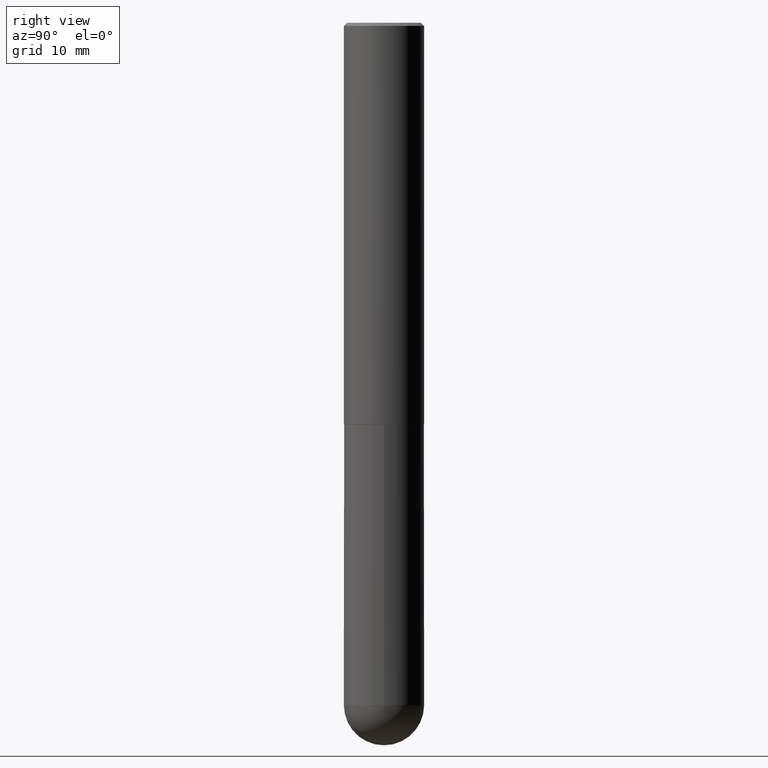
[diagram: clean part render]
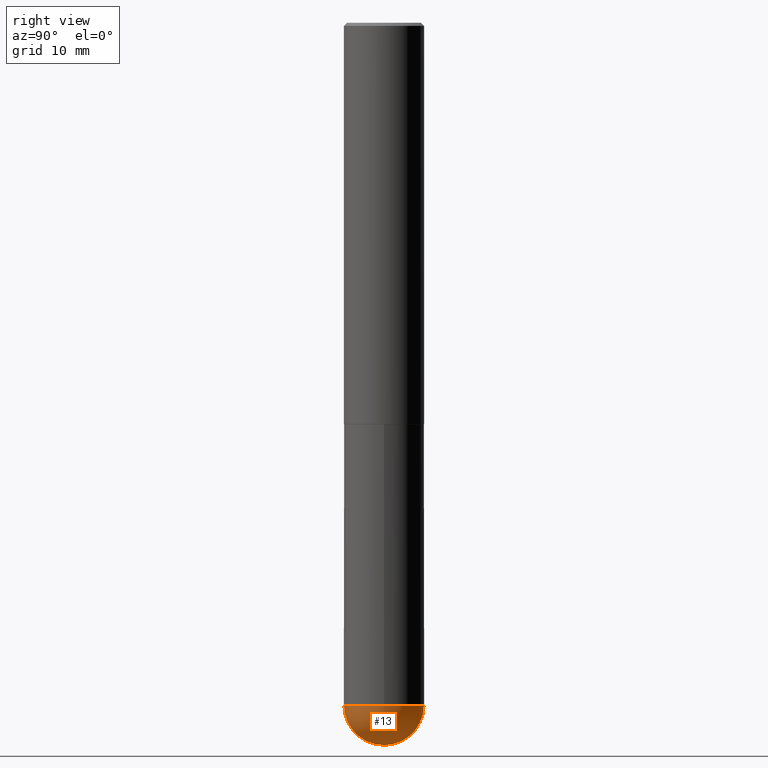
[diagram: same view with one face highlighted and labeled with its STEP entity id]
A machine part, right view. The second image highlights one B-rep face of the part: STEP entity #13.
In plain terms, the highlighted spherical surface has radius 6.35 mm.
Its self-contained STEP definition (entity closure, byte-faithful):
#8 = SPHERICAL_SURFACE ( 'NONE', #216, 0.2500000000000001110 ) ;
#13 = ADVANCED_FACE ( 'NONE', ( #228 ), #8, .T. ) ;
#32 = CIRCLE ( 'NONE', #205, 0.2500000000000001110 ) ;
#41 = CARTESIAN_POINT ( 'NONE',  ( 1.006212264837294429E-28, -1.531297805822341912E-14, -4.250000000000000000 ) ) ;
#48 = CIRCLE ( 'NONE', #238, 0.2500000000000000000 ) ;
#49 = DIRECTION ( 'NONE',  ( 1.000000000000000000, -6.982962677686270655E-15, 0.000000000000000000 ) ) ;
#54 = ORIENTED_EDGE ( 'NONE', *, *, #252, .F. ) ;
#55 = CARTESIAN_POINT ( 'NONE',  ( 1.039324242628683054E-28, -1.483879569008337040E-14, -4.250000000000000000 ) ) ;
#83 = CARTESIAN_POINT ( 'NONE',  ( 1.039324242628683054E-28, -1.483879569008337040E-14, -4.250000000000000000 ) ) ;
#91 = AXIS2_PLACEMENT_3D ( 'NONE', #83, #335, #49 ) ;
#94 = DIRECTION ( 'NONE',  ( 1.000000000000000000, -6.982962677686270655E-15, 0.000000000000000000 ) ) ;
#96 = AXIS2_PLACEMENT_3D ( 'NONE', #240, #303, #298 ) ;
#110 = EDGE_CURVE ( 'NONE', #326, #201, #152, .T. ) ;
#114 = CARTESIAN_POINT ( 'NONE',  ( -1.776356839400148307E-15, -0.2500000000000151545, -4.249999999999999112 ) ) ;
#125 = EDGE_LOOP ( 'NONE', ( #350, #139, #54, #309 ) ) ;
#139 = ORIENTED_EDGE ( 'NONE', *, *, #175, .T. ) ;
#152 = CIRCLE ( 'NONE', #96, 0.2500000000000001110 ) ;
#167 = DIRECTION ( 'NONE',  ( -1.000000000000000000, 6.982962677686265922E-15, -4.883557194083113462E-29 ) ) ;
#175 = EDGE_CURVE ( 'NONE', #326, #186, #32, .T. ) ;
#186 = VERTEX_POINT ( 'NONE', #302 ) ;
#187 = CARTESIAN_POINT ( 'NONE',  ( 1.068417942853397052E-28, -1.617054030794486372E-14, -4.500000000000000888 ) ) ;
#201 = VERTEX_POINT ( 'NONE', #114 ) ;
#204 = EDGE_CURVE ( 'NONE', #201, #356, #223, .T. ) ;
#205 = AXIS2_PLACEMENT_3D ( 'NONE', #41, #268, #394 ) ;
#216 = AXIS2_PLACEMENT_3D ( 'NONE', #255, #167, #291 ) ;
#223 = CIRCLE ( 'NONE', #91, 0.2500000000000000000 ) ;
#228 = FACE_OUTER_BOUND ( 'NONE', #125, .T. ) ;
#238 = AXIS2_PLACEMENT_3D ( 'NONE', #55, #373, #94 ) ;
#240 = CARTESIAN_POINT ( 'NONE',  ( 1.006212264837294429E-28, -1.531297805822341912E-14, -4.250000000000000000 ) ) ;
#252 = EDGE_CURVE ( 'NONE', #356, #186, #48, .T. ) ;
#255 = CARTESIAN_POINT ( 'NONE',  ( 1.006212264837294429E-28, -1.531297805822341912E-14, -4.250000000000000000 ) ) ;
#268 = DIRECTION ( 'NONE',  ( 1.000000000000000000, -6.982962677686265922E-15, 4.883557194083112340E-29 ) ) ;
#291 = DIRECTION ( 'NONE',  ( 6.982962677686265922E-15, 1.000000000000000000, -4.370956789862818783E-15 ) ) ;
#298 = DIRECTION ( 'NONE',  ( -7.105427357601001859E-15, -1.000000000000000000, 0.000000000000000000 ) ) ;
#302 = CARTESIAN_POINT ( 'NONE',  ( 1.745740669421669032E-15, 0.2499999999999849842, -4.250000000000001776 ) ) ;
#303 = DIRECTION ( 'NONE',  ( -1.000000000000000000, 7.105427357601001070E-15, -4.926315508542082329E-29 ) ) ;
#309 = ORIENTED_EDGE ( 'NONE', *, *, #204, .F. ) ;
#326 = VERTEX_POINT ( 'NONE', #187 ) ;
#335 = DIRECTION ( 'NONE',  ( -2.445468806185136597E-29, 3.491481338843145583E-15, 1.000000000000000000 ) ) ;
#350 = ORIENTED_EDGE ( 'NONE', *, *, #110, .F. ) ;
#356 = VERTEX_POINT ( 'NONE', #376 ) ;
#373 = DIRECTION ( 'NONE',  ( -2.445468806185136597E-29, 3.491481338843145583E-15, 1.000000000000000000 ) ) ;
#376 = CARTESIAN_POINT ( 'NONE',  ( 0.2500000000000000000, -1.352949018801718751E-14, -4.250000000000000000 ) ) ;
#394 = DIRECTION ( 'NONE',  ( 6.982962677686266711E-15, 1.000000000000000000, 0.000000000000000000 ) ) ;